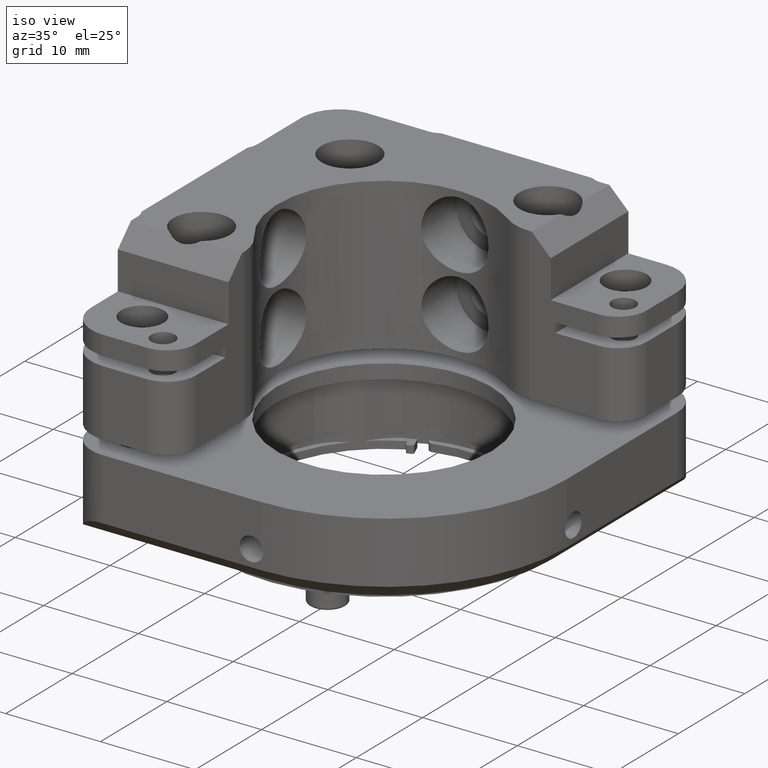
[diagram: clean part render]
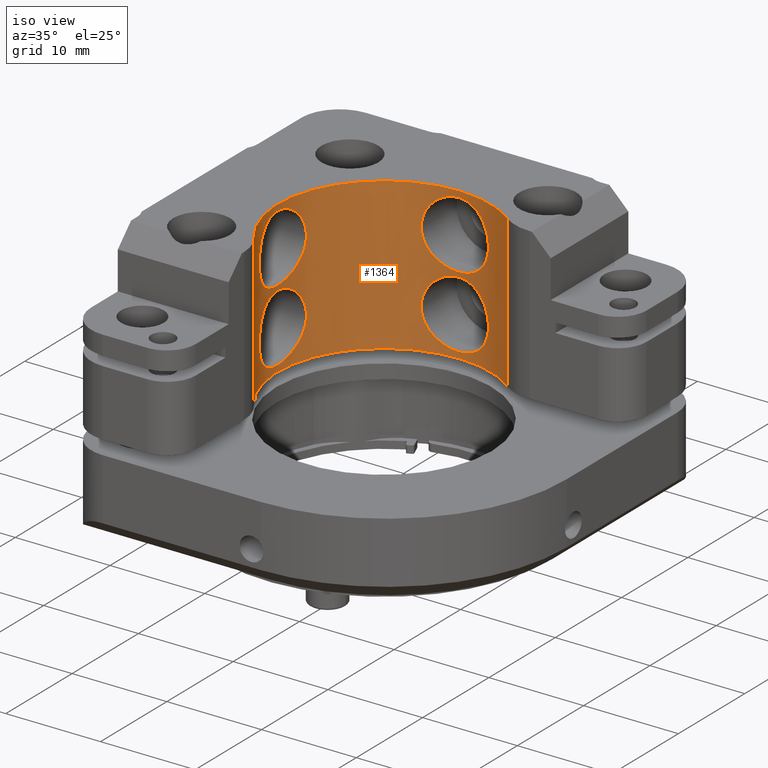
[diagram: same view with one face highlighted and labeled with its STEP entity id]
A machine part, iso view. The second image highlights one B-rep face of the part: STEP entity #1364.
In plain terms, the highlighted cylindrical surface (partial cylindrical patch) has radius 11.2451 mm, axis along (0, 0, 1).
Its self-contained STEP definition (entity closure, byte-faithful):
#15 = CARTESIAN_POINT ( 'NONE',  ( -14.31236666308320160, -4.865579616786823713, 43.62321763448039746 ) ) ;
#48 = AXIS2_PLACEMENT_3D ( 'NONE', #3763, #3634, #6253 ) ;
#69 = CYLINDRICAL_SURFACE ( 'NONE', #3404, 11.24513151818799983 ) ;
#161 = CARTESIAN_POINT ( 'NONE',  ( -1.530369033329904038, 8.586266490541754948, 51.62848633835312029 ) ) ;
#169 = CARTESIAN_POINT ( 'NONE',  ( -13.99150271913773835, -6.045252163959690783, 41.41662615687739191 ) ) ;
#212 = CARTESIAN_POINT ( 'NONE',  ( -14.44920764486471221, -0.9372601826190012364, 44.13704618239331268 ) ) ;
#230 = CARTESIAN_POINT ( 'NONE',  ( -14.34938155197306031, -0.3493427435872565323, 51.36994135241587145 ) ) ;
#245 = CARTESIAN_POINT ( 'NONE',  ( -5.987755658656773505, 8.405547851881792099, 50.89644701238560032 ) ) ;
#250 = CARTESIAN_POINT ( 'NONE',  ( -14.04353504106719619, -5.884579571790988339, 42.10084636964344185 ) ) ;
#266 = CARTESIAN_POINT ( 'NONE',  ( -14.50196695122227020, -3.668004962413770720, 51.91675362483372425 ) ) ;
#271 = CARTESIAN_POINT ( 'NONE',  ( -5.097218840745871837, 8.586185984047057573, 44.02812472142658606 ) ) ;
#285 = CARTESIAN_POINT ( 'NONE',  ( -14.02125086928506548, 0.9172719695080698843, 41.87422503393144524 ) ) ;
#302 = CARTESIAN_POINT ( 'NONE',  ( -14.55884723110194479, -2.752726602096708941, 52.10018332450349732 ) ) ;
#309 = CARTESIAN_POINT ( 'NONE',  ( -6.135110307681190811, 8.367934528686561180, 38.78320819674291897 ) ) ;
#321 = CARTESIAN_POINT ( 'NONE',  ( -4.893751913291115585, 8.617387937773468565, 45.36250325345411483 ) ) ;
#358 = CARTESIAN_POINT ( 'NONE',  ( 0.2363215169500273716, 8.151769701748913022, 40.94820530452321350 ) ) ;
#367 = CARTESIAN_POINT ( 'NONE',  ( -5.989346801238241369, 8.405152538514020222, 46.20552914934300759 ) ) ;
#388 = CARTESIAN_POINT ( 'NONE',  ( -14.02132692640836353, -5.953641031909469916, 47.62547198155860428 ) ) ;
#393 = CARTESIAN_POINT ( 'NONE',  ( -4.892652665842337711, 8.617549766822264701, 44.13819053998420827 ) ) ;
#401 = CARTESIAN_POINT ( 'NONE',  ( -3.546445800775468005, 8.726836882760416358, 45.00003243101766515 ) ) ;
#450 = ORIENTED_EDGE ( 'NONE', *, *, #7553, .F. ) ;
#581 = VERTEX_POINT ( 'NONE', #7536 ) ;
#592 = CARTESIAN_POINT ( 'NONE',  ( -14.55884723232798095, -2.752726543281989624, 44.50018332838695301 ) ) ;
#705 = CARTESIAN_POINT ( 'NONE',  ( -0.1252134088632065878, 8.265728095126508634, 50.12805316787222409 ) ) ;
#719 = EDGE_CURVE ( 'NONE', #5009, #5009, #6345, .T. ) ;
#746 = ORIENTED_EDGE ( 'NONE', *, *, #4487, .F. ) ;
#750 = CARTESIAN_POINT ( 'NONE',  ( -14.55130870250303410, -2.048446270117819878, 44.47649926543601850 ) ) ;
#781 = CARTESIAN_POINT ( 'NONE',  ( 0.2132244045658422960, 8.159533871875730426, 49.01654055617019878 ) ) ;
#785 = CARTESIAN_POINT ( 'NONE',  ( -14.23741422748051022, -5.192853967128993276, 38.60422123207457190 ) ) ;
#795 = VERTEX_POINT ( 'NONE', #6936 ) ;
#822 = CARTESIAN_POINT ( 'NONE',  ( -14.55881623220393095, -2.285960120800358819, 37.40004294645076754 ) ) ;
#884 = CARTESIAN_POINT ( 'NONE',  ( -14.41806050655969607, -0.7339734682347992534, 51.62776871347067242 ) ) ;
#887 = EDGE_LOOP ( 'NONE', ( #2243 ) ) ;
#889 = CARTESIAN_POINT ( 'NONE',  ( -1.530369033329870954, 8.586266490541742513, 44.02848633835299097 ) ) ;
#900 = CARTESIAN_POINT ( 'NONE',  ( -1.145475676170410129, 8.517576095495648758, 45.72945833709520969 ) ) ;
#905 = CARTESIAN_POINT ( 'NONE',  ( -13.98373852608685119, 1.031736571089606924, 40.71748260014703646 ) ) ;
#923 = CARTESIAN_POINT ( 'NONE',  ( -14.23784310037552991, -5.191031516735002072, 50.89782489308907998 ) ) ;
#929 = CARTESIAN_POINT ( 'NONE',  ( -0.6399691800440466816, 8.405619068986583287, 43.29670608751013106 ) ) ;
#941 = CARTESIAN_POINT ( 'NONE',  ( 0.1214089604871732425, 8.189424685421013095, 47.62450006543650716 ) ) ;
#964 = CARTESIAN_POINT ( 'NONE',  ( -14.23790010131066097, 0.1542511310234342958, 46.20198453954466089 ) ) ;
#970 = CARTESIAN_POINT ( 'NONE',  ( -4.461997229194887282, 8.670155739381200988, 37.58278913406236654 ) ) ;
#1010 = CARTESIAN_POINT ( 'NONE',  ( -13.98373852480606772, 1.031736574939190687, 48.31748265889726923 ) ) ;
#1016 = CARTESIAN_POINT ( 'NONE',  ( -0.1252134088631900455, 8.265728095126506858, 42.52805316787211609 ) ) ;
#1025 = CARTESIAN_POINT ( 'NONE',  ( -0.6422884623291388317, 8.406186816211155488, 46.20079897486505160 ) ) ;
#1047 = CARTESIAN_POINT ( 'NONE',  ( -14.52286853720845095, -3.445834450622162315, 45.11533075807382431 ) ) ;
#1052 = CARTESIAN_POINT ( 'NONE',  ( -5.479748306468347430, 8.517947867819531282, 43.77205179980550298 ) ) ;
#1059 = CARTESIAN_POINT ( 'NONE',  ( -4.461997229194839321, 8.670155739381204540, 45.18278913406242481 ) ) ;
#1211 = CARTESIAN_POINT ( 'NONE',  ( -14.52297633522691811, -1.592701298058768478, 51.98514347307779815 ) ) ;
#1245 = CARTESIAN_POINT ( 'NONE',  ( -14.41850419799524197, -4.299862009406195895, 44.02935634384621721 ) ) ;
#1257 = EDGE_LOOP ( 'NONE', ( #746 ) ) ;
#1299 = CARTESIAN_POINT ( 'NONE',  ( 0.2363215164391065937, 8.151769701380514377, 48.54820530439382509 ) ) ;
#1300 = VERTEX_POINT ( 'NONE', #2352 ) ;
#1357 = CARTESIAN_POINT ( 'NONE',  ( -13.99165030725404613, -6.044802769002547649, 40.48079061483018393 ) ) ;
#1364 = ADVANCED_FACE ( 'NONE', ( #6858, #3136, #3790, #3824, #6316 ), #69, .F. ) ;
#1396 = CARTESIAN_POINT ( 'NONE',  ( -14.55148877729722123, -2.985073329748103799, 37.42304954772966852 ) ) ;
#1432 = CARTESIAN_POINT ( 'NONE',  ( -13.99164787808042476, 1.008203451408851592, 40.48055458937659523 ) ) ;
#1485 = CARTESIAN_POINT ( 'NONE',  ( -14.52291027287348690, -1.591501658945259967, 45.11519661780572932 ) ) ;
#1493 = CARTESIAN_POINT ( 'NONE',  ( -5.660020284225925735, 8.480600871087764503, 43.62417739994854315 ) ) ;
#1508 = CARTESIAN_POINT ( 'NONE',  ( 0.2363215169500273438, 8.151769701748911245, 48.54820530452334992 ) ) ;
#1519 = CARTESIAN_POINT ( 'NONE',  ( -14.09777251288874567, -5.706580962251557310, 39.37140812076432894 ) ) ;
#1538 = CARTESIAN_POINT ( 'NONE',  ( -14.09792468312627989, 0.6694563421489656552, 46.97040808818641722 ) ) ;
#1545 = CARTESIAN_POINT ( 'NONE',  ( -5.098912216429692279, 8.585917054038194607, 37.87296225804834648 ) ) ;
#1554 = CARTESIAN_POINT ( 'NONE',  ( -2.846991596595978002, 8.719482409169849291, 52.07699876430663721 ) ) ;
#1579 = CARTESIAN_POINT ( 'NONE',  ( -14.04353503508571421, -5.884579590757777368, 49.70084631418019683 ) ) ;
#1585 = CARTESIAN_POINT ( 'NONE',  ( -0.2357511986268673587, 8.298218711627319166, 39.16612497313411012 ) ) ;
#1593 = CARTESIAN_POINT ( 'NONE',  ( -3.783357612573775786, 8.719341818254731535, 45.02357736213344452 ) ) ;
#1621 = CARTESIAN_POINT ( 'NONE',  ( -14.19966687702944341, -5.340682160188625183, 46.38450991387337297 ) ) ;
#1626 = CARTESIAN_POINT ( 'NONE',  ( -6.840702377601674655, 8.159496477382646162, 41.41675422064765399 ) ) ;
#1635 = CARTESIAN_POINT ( 'NONE',  ( -3.546426494587659128, 8.726852179569906554, 52.10014409357718534 ) ) ;
#1655 = CARTESIAN_POINT ( 'NONE',  ( -12.31247930067644880, -9.261787319892579973, 36.75006403882015604 ) ) ;
#1661 = CARTESIAN_POINT ( 'NONE',  ( -14.13000341172667973, -5.596967618585718895, 50.33293905043067440 ) ) ;
#1668 = CARTESIAN_POINT ( 'NONE',  ( -1.734984760622182653, 8.617543287776882721, 44.13814684444164271 ) ) ;
#1679 = CARTESIAN_POINT ( 'NONE',  ( -6.391873348702816315, 8.298136407065943132, 46.76668020533094960 ) ) ;
#1703 = ORIENTED_EDGE ( 'NONE', *, *, #2377, .F. ) ;
#1748 = EDGE_LOOP ( 'NONE', ( #3277 ) ) ;
#1783 = CARTESIAN_POINT ( 'NONE',  ( -14.44920765232755500, -0.9372602349848169201, 51.73704620837801826 ) ) ;
#1867 = ORIENTED_EDGE ( 'NONE', *, *, #2639, .F. ) ;
#1873 = DIRECTION ( 'NONE',  ( 1.000000000000000000, 0.000000000000000000, 0.000000000000000000 ) ) ;
#1883 = DIRECTION ( 'NONE',  ( -0.000000000000000000, -0.000000000000000000, -1.000000000000000000 ) ) ;
#1928 = CARTESIAN_POINT ( 'NONE',  ( 0.2364452044605728498, 8.151728550150849628, 41.18443677306663631 ) ) ;
#1979 = CARTESIAN_POINT ( 'NONE',  ( -14.09743686839448529, 0.6710712880680719250, 42.52604706975761673 ) ) ;
#2013 = CARTESIAN_POINT ( 'NONE',  ( -13.98372829061531952, -6.068376562862218826, 40.71717101020955454 ) ) ;
#2049 = CARTESIAN_POINT ( 'NONE',  ( -14.02143916999785489, 0.9166845536863736932, 40.02402532973906091 ) ) ;
#2097 = CARTESIAN_POINT ( 'NONE',  ( -13.99150271656788114, -6.045252171686082754, 49.01662609851116770 ) ) ;
#2104 = CARTESIAN_POINT ( 'NONE',  ( -1.737394979588947397, 8.617875880559399349, 37.76082831156052322 ) ) ;
#2116 = CARTESIAN_POINT ( 'NONE',  ( -0.9676576224955441008, 8.480650949830732088, 45.87582455977587159 ) ) ;
#2139 = CARTESIAN_POINT ( 'NONE',  ( -14.55881623098980704, -2.285960062059621656, 45.00004295029686574 ) ) ;
#2141 = EDGE_LOOP ( 'NONE', ( #1703, #1867, #450, #6157 ) ) ;
#2144 = CARTESIAN_POINT ( 'NONE',  ( -5.662346490322124559, 8.480098723900450608, 38.27802292585673172 ) ) ;
#2183 = CARTESIAN_POINT ( 'NONE',  ( -14.31245966457891861, -4.865223725128505983, 45.87645910048630782 ) ) ;
#2188 = CARTESIAN_POINT ( 'NONE',  ( -3.546445800775518187, 8.726836882760416358, 37.40003243101754293 ) ) ;
#2197 = CARTESIAN_POINT ( 'NONE',  ( -3.079947191275853147, 8.726816905514855449, 45.00009570405405412 ) ) ;
#2221 = CARTESIAN_POINT ( 'NONE',  ( -14.55145378063382289, -2.984852828135218239, 52.07696004103888754 ) ) ;
#2227 = CARTESIAN_POINT ( 'NONE',  ( -6.680442926197286191, 8.211398892409080830, 42.09946308467313969 ) ) ;
#2236 = CARTESIAN_POINT ( 'NONE',  ( -5.662346490322087256, 8.480098723900463042, 45.87802292585680419 ) ) ;
#2243 = ORIENTED_EDGE ( 'NONE', *, *, #5781, .F. ) ;
#2263 = CARTESIAN_POINT ( 'NONE',  ( -14.34995764190793999, -4.684324765757032161, 51.37218108142621276 ) ) ;
#2269 = CARTESIAN_POINT ( 'NONE',  ( -2.848556576432041521, 8.719556694874016856, 37.42289242967193275 ) ) ;
#2281 = CARTESIAN_POINT ( 'NONE',  ( -6.680442926197303954, 8.211398892409077277, 49.69946308467318374 ) ) ;
#2335 = DIRECTION ( 'NONE',  ( 1.000000000000000000, 0.000000000000000000, 0.000000000000000000 ) ) ;
#2352 = CARTESIAN_POINT ( 'NONE',  ( 3.429804650809838318, 6.480496631595250356, 36.75006403882015604 ) ) ;
#2377 = EDGE_CURVE ( 'NONE', #4892, #4403, #6847, .T. ) ;
#2430 = CARTESIAN_POINT ( 'NONE',  ( -14.55880942955014490, -2.516505101774574538, 52.10006357876157068 ) ) ;
#2464 = CARTESIAN_POINT ( 'NONE',  ( -14.50196695693910343, -3.668004907041888973, 44.31675364374573434 ) ) ;
#2486 = LINE ( 'NONE', #5642, #3750 ) ;
#2499 = CARTESIAN_POINT ( 'NONE',  ( -14.23784310980699530, -5.191031478346448402, 43.29782493678879263 ) ) ;
#2535 = CARTESIAN_POINT ( 'NONE',  ( 0.2363215169500273438, 8.151769701748911245, 48.54820530452334992 ) ) ;
#2565 = CARTESIAN_POINT ( 'NONE',  ( -3.313678055346378937, -2.518304613739263065, 36.75006403882015604 ) ) ;
#2621 = CARTESIAN_POINT ( 'NONE',  ( -14.50197724387635390, -3.667851362102223511, 37.58334389165352718 ) ) ;
#2639 = EDGE_CURVE ( 'NONE', #1300, #4892, #5837, .T. ) ;
#2648 = CARTESIAN_POINT ( 'NONE',  ( -1.734984760622216626, 8.617543287776893379, 51.73814684444178624 ) ) ;
#2655 = CARTESIAN_POINT ( 'NONE',  ( -14.31283028961672699, -0.1731326271628945701, 38.27495657587262912 ) ) ;
#2693 = CARTESIAN_POINT ( 'NONE',  ( -14.13008342141962004, -5.596606515188890185, 39.16694959676458154 ) ) ;
#2712 = CARTESIAN_POINT ( 'NONE',  ( -14.31283028025158544, -0.1731325834270254493, 45.87495661421760929 ) ) ;
#2718 = CARTESIAN_POINT ( 'NONE',  ( -6.863700753026835244, 8.151762007790090081, 40.71776410162691917 ) ) ;
#2729 = CARTESIAN_POINT ( 'NONE',  ( -2.164116382807927952, 8.669979092779261265, 45.18340385829866790 ) ) ;
#2734 = CARTESIAN_POINT ( 'NONE',  ( -14.04340210497725394, 0.8483843531531217730, 42.09951892680395247 ) ) ;
#2750 = CARTESIAN_POINT ( 'NONE',  ( -14.31236665372329497, -4.865579660462101330, 51.22321759613161163 ) ) ;
#2755 = CARTESIAN_POINT ( 'NONE',  ( -0.1265502701843356226, 8.266125847945883010, 39.36932955230238207 ) ) ;
#2791 = CARTESIAN_POINT ( 'NONE',  ( -13.98377623798470992, -6.068232449621256741, 48.78514352119040609 ) ) ;
#2798 = CARTESIAN_POINT ( 'NONE',  ( -4.460291095130718197, 8.670336597000263268, 44.31794022338033301 ) ) ;
#2809 = EDGE_CURVE ( 'NONE', #795, #795, #4419, .T. ) ;
#2811 = CARTESIAN_POINT ( 'NONE',  ( 0.2127474845624594268, 8.159692036471966503, 48.08015511804587305 ) ) ;
#2835 = CARTESIAN_POINT ( 'NONE',  ( -14.55142638204622152, -2.050476473053577386, 45.02325034902395373 ) ) ;
#2848 = CARTESIAN_POINT ( 'NONE',  ( -6.133777362313810322, 8.368282313894892965, 50.71867025855012656 ) ) ;
#2864 = CARTESIAN_POINT ( 'NONE',  ( -3.313678055346378937, -2.518304613739263065, 36.75006403882015604 ) ) ;
#2870 = CARTESIAN_POINT ( 'NONE',  ( -14.20004375408154473, 0.3027011831886659565, 50.71773260952213747 ) ) ;
#2877 = CARTESIAN_POINT ( 'NONE',  ( -0.9652780690512403616, 8.480142789428967376, 43.62222898845078589 ) ) ;
#2884 = CARTESIAN_POINT ( 'NONE',  ( -6.135110307681167718, 8.367934528686570061, 46.38320819674297724 ) ) ;
#2999 = B_SPLINE_CURVE_WITH_KNOTS ( 'NONE', 3,
 ( #7710, #302, #2221, #7864, #266, #7087, #6643, #2263, #2750, #923, #5248, #1661, #4644, #1579, #4064, #2097, #2791, #5294, #7826, #388, #7137, #3411, #5218, #1621, #5904, #2183, #4686, #7177, #6521, #4723, #1047, #6562, #7216, #2139, #2835, #1485, #7260, #4102, #6604, #5829, #2712, #964, #6483, #3373, #1538, #3450, #5950, #7743, #1010, #3985, #3495, #7790, #5334, #4023, #5986, #2870, #5371, #4146, #230, #884, #1783, #5417, #1211, #6063, #4314, #2430 ),
 .UNSPECIFIED., .T., .F.,
 ( 4, 2, 2, 2, 2, 2, 2, 2, 2, 2, 2, 2, 2, 2, 2, 2, 2, 2, 2, 2, 2, 2, 2, 2, 2, 2, 2, 2, 2, 2, 2, 2, 4 ),
 ( 0.000000000000000000, 0.0006989021168187838648, 0.001397804233637567730, 0.002096706350456351703, 0.002795608467275135459, 0.003494510584093919216, 0.004193412700912703406, 0.004892314817731486729, 0.005591216934550270919, 0.006290119051369055109, 0.006989021168187838431, 0.007687923285006622622, 0.008386825401825406812, 0.009085727518644190134, 0.009784629635462973457, 0.01048353175228175851, 0.01118243386910054184, 0.01188133598591932516, 0.01258023810273811022, 0.01327914021955689354, 0.01397804233637567686, 0.01467694445319446192, 0.01537584657001324524, 0.01607474868683202857, 0.01677365080365081362, 0.01747255292046959521, 0.01817145503728838027, 0.01887035715410716533, 0.01956925927092594691, 0.02026816138774473197, 0.02096706350456351703, 0.02166596562138229862, 0.02236486773820108367 ),
 .UNSPECIFIED. ) ;
#3136 = FACE_BOUND ( 'NONE', #3987, .T. ) ;
#3185 = CARTESIAN_POINT ( 'NONE',  ( -0.2340937240304970524, 8.297742666492791130, 50.33110633409995671 ) ) ;
#3234 = CARTESIAN_POINT ( 'NONE',  ( -14.55880942954073198, -2.516505042961861172, 44.50006357873154172 ) ) ;
#3263 = CARTESIAN_POINT ( 'NONE',  ( -0.6399691800440767686, 8.405619068986592168, 50.89670608751026037 ) ) ;
#3267 = CARTESIAN_POINT ( 'NONE',  ( -14.55142638448435832, -2.050476531274424197, 37.42325034129973460 ) ) ;
#3277 = ORIENTED_EDGE ( 'NONE', *, *, #719, .F. ) ;
#3309 = CARTESIAN_POINT ( 'NONE',  ( -14.55880290564182111, -2.751293199910755938, 37.40008515251747667 ) ) ;
#3373 = CARTESIAN_POINT ( 'NONE',  ( -14.13034108904982844, 0.5591043744184972519, 46.76536937481006362 ) ) ;
#3379 = CARTESIAN_POINT ( 'NONE',  ( -6.748435234861074328, 8.189532694938757018, 41.87750321235480300 ) ) ;
#3392 = CARTESIAN_POINT ( 'NONE',  ( -14.41787488635145031, -4.303739312418860763, 37.87303875578461287 ) ) ;
#3404 = AXIS2_PLACEMENT_3D ( 'NONE', #2565, #7559, #1873 ) ;
#3406 = VERTEX_POINT ( 'NONE', #4720 ) ;
#3411 = CARTESIAN_POINT ( 'NONE',  ( -14.09777252055769914, -5.706580936417137373, 46.97140806861663265 ) ) ;
#3417 = CARTESIAN_POINT ( 'NONE',  ( -2.389513530173300815, 8.691146073613195355, 37.51448584377156692 ) ) ;
#3450 = CARTESIAN_POINT ( 'NONE',  ( -14.04320260101548712, 0.8490531433978674158, 47.40200718258390822 ) ) ;
#3458 = CARTESIAN_POINT ( 'NONE',  ( 0.2361978294394818934, 8.151810853346978192, 40.71197383597979069 ) ) ;
#3470 = CARTESIAN_POINT ( 'NONE',  ( -5.660020284225955045, 8.480600871087755621, 51.22417739994862274 ) ) ;
#3495 = CARTESIAN_POINT ( 'NONE',  ( -13.99143269117510968, 1.008855428358812478, 49.01525435947483800 ) ) ;
#3500 = CARTESIAN_POINT ( 'NONE',  ( -3.546426494587616940, 8.726852179569906554, 44.50014409357709866 ) ) ;
#3508 = CARTESIAN_POINT ( 'NONE',  ( -6.863700753026828139, 8.151762007790090081, 48.31776410162696322 ) ) ;
#3534 = CARTESIAN_POINT ( 'NONE',  ( -6.390927630420544681, 8.298407922276425097, 42.73509850987230863 ) ) ;
#3543 = CARTESIAN_POINT ( 'NONE',  ( -4.892652665842375015, 8.617549766822257595, 51.73819053998428075 ) ) ;
#3634 = DIRECTION ( 'NONE',  ( -0.000000000000000000, -0.000000000000000000, -1.000000000000000000 ) ) ;
#3750 = VECTOR ( 'NONE', #1883, 1000.000000000000000 ) ;
#3763 = CARTESIAN_POINT ( 'NONE',  ( -3.313678055346378937, -2.518304613739263065, 52.75006403882015604 ) ) ;
#3790 = FACE_OUTER_BOUND ( 'NONE', #2141, .T. ) ;
#3824 = FACE_BOUND ( 'NONE', #1748, .T. ) ;
#3842 = CARTESIAN_POINT ( 'NONE',  ( 0.1221624845443527868, 8.189182274931617656, 49.47290805223508414 ) ) ;
#3847 = CARTESIAN_POINT ( 'NONE',  ( -14.50174835130915874, -1.366434922841037292, 44.31603387542985217 ) ) ;
#3886 = CARTESIAN_POINT ( 'NONE',  ( -14.13034109741490418, 0.5591043451502037964, 39.16536932435119667 ) ) ;
#3921 = CARTESIAN_POINT ( 'NONE',  ( -14.12954057748730641, 0.5619794209226687265, 42.73015138977405769 ) ) ;
#3940 = CARTESIAN_POINT ( 'NONE',  ( 0.2363215169500273716, 8.151769701748913022, 40.94820530452321350 ) ) ;
#3959 = CARTESIAN_POINT ( 'NONE',  ( -14.44967136933197160, -4.096008441965778957, 37.76147297763942134 ) ) ;
#3985 = CARTESIAN_POINT ( 'NONE',  ( -13.98376600850350648, 1.031653968431955670, 48.78390287392970492 ) ) ;
#3987 = EDGE_LOOP ( 'NONE', ( #4684 ) ) ;
#3991 = CARTESIAN_POINT ( 'NONE',  ( -0.9676576224955734107, 8.480650949830737417, 38.27582455977576359 ) ) ;
#4002 = CARTESIAN_POINT ( 'NONE',  ( -3.782833663569133087, 8.719352549976479239, 52.07658276709626222 ) ) ;
#4006 = CARTESIAN_POINT ( 'NONE',  ( -14.04320260698795053, 0.8490531244680061818, 39.80200712708580113 ) ) ;
#4023 = CARTESIAN_POINT ( 'NONE',  ( -14.09743687607721263, 0.6710712621954466606, 50.12604712210562496 ) ) ;
#4030 = CARTESIAN_POINT ( 'NONE',  ( -3.782833663569089566, 8.719352549976475686, 44.47658276709618264 ) ) ;
#4039 = CARTESIAN_POINT ( 'NONE',  ( -5.097218840745913582, 8.586185984047057573, 51.62812472142667275 ) ) ;
#4064 = CARTESIAN_POINT ( 'NONE',  ( -14.02129716282795968, -5.953736409218917558, 49.47464372509379871 ) ) ;
#4069 = CARTESIAN_POINT ( 'NONE',  ( 0.2127474845624525990, 8.159692036471968279, 40.48015511804570821 ) ) ;
#4077 = CARTESIAN_POINT ( 'NONE',  ( -0.1265502701843156663, 8.266125847945877680, 46.96932955230251849 ) ) ;
#4102 = CARTESIAN_POINT ( 'NONE',  ( -14.44990052618223508, -0.9422479295007150091, 45.36067783892659833 ) ) ;
#4110 = CARTESIAN_POINT ( 'NONE',  ( -6.391873348702837632, 8.298136407065939579, 39.16668020533089134 ) ) ;
#4120 = CARTESIAN_POINT ( 'NONE',  ( -4.239917897994151197, 8.690949419017627520, 45.11512781427170893 ) ) ;
#4146 = CARTESIAN_POINT ( 'NONE',  ( -14.31182664526665782, -0.1685190205109306505, 51.22099704538728560 ) ) ;
#4151 = CARTESIAN_POINT ( 'NONE',  ( -0.2340937240304764300, 8.297742666492785801, 42.73110633409979897 ) ) ;
#4163 = CARTESIAN_POINT ( 'NONE',  ( -6.502404899382900005, 8.265649398568497119, 50.12748122965015085 ) ) ;
#4314 = CARTESIAN_POINT ( 'NONE',  ( -14.55877162799834501, -2.280283601452439690, 52.09994383301963694 ) ) ;
#4395 = CARTESIAN_POINT ( 'NONE',  ( -14.55145378307320314, -2.984852769765178326, 44.47696004876737419 ) ) ;
#4403 = VERTEX_POINT ( 'NONE', #6977 ) ;
#4419 = B_SPLINE_CURVE_WITH_KNOTS ( 'NONE', 3,
 ( #6233, #592, #4395, #5578, #2464, #4964, #1245, #7456, #15, #2499, #6889, #4439, #6302, #250, #7035, #169, #4513, #2013, #1357, #7584, #6384, #1519, #2693, #5160, #785, #7115, #5888, #3392, #3959, #2621, #6348, #1396, #3309, #822, #3267, #6503, #6961, #6417, #4552, #5771, #2655, #7003, #7657, #3886, #7728, #4006, #2049, #1432, #905, #5849, #5125, #285, #2734, #1979, #3921, #5088, #5810, #5737, #7071, #4477, #212, #3847, #5201, #750, #7693, #3234 ),
 .UNSPECIFIED., .T., .F.,
 ( 4, 2, 2, 2, 2, 2, 2, 2, 2, 2, 2, 2, 2, 2, 2, 2, 2, 2, 2, 2, 2, 2, 2, 2, 2, 2, 2, 2, 2, 2, 2, 2, 4 ),
 ( 0.000000000000000000, 0.0006989021169183640397, 0.001397804233836728079, 0.002096706350755093637, 0.002795608467673458761, 0.003494510584591823885, 0.004193412701510189008, 0.004892314818428555000, 0.005591216935346920124, 0.006290119052265284380, 0.006989021169183650371, 0.007687923286102015495, 0.008386825403020381486, 0.009085727519938746610, 0.009784629636857111734, 0.01048353175377547686, 0.01118243387069384198, 0.01188133598761220711, 0.01258023810453056876, 0.01327914022144893388, 0.01397804233836729901, 0.01467694445528566413, 0.01537584657220402579, 0.01607474868912239091, 0.01677365080604075603, 0.01747255292295912116, 0.01817145503987748281, 0.01887035715679584794, 0.01956925927371420959, 0.02026816139063257471, 0.02096706350755093984, 0.02166596562446930149, 0.02236486774138767009 ),
 .UNSPECIFIED. ) ;
#4420 = CARTESIAN_POINT ( 'NONE',  ( 0.1221624845443637919, 8.189182274931621208, 41.87290805223497614 ) ) ;
#4439 = CARTESIAN_POINT ( 'NONE',  ( -14.13000342007877386, -5.596967589379832297, 42.73293910085815384 ) ) ;
#4477 = CARTESIAN_POINT ( 'NONE',  ( -14.41806049841034110, -0.7339734177461229025, 44.02776868419192624 ) ) ;
#4487 = EDGE_CURVE ( 'NONE', #3406, #3406, #2999, .T. ) ;
#4513 = CARTESIAN_POINT ( 'NONE',  ( -13.98377623927853541, -6.068232445732481217, 41.18514357995886144 ) ) ;
#4547 = VECTOR ( 'NONE', #6932, 1000.000000000000000 ) ;
#4552 = CARTESIAN_POINT ( 'NONE',  ( -14.41811656271862674, -0.7343811640644470895, 37.87217431550940461 ) ) ;
#4606 = CARTESIAN_POINT ( 'NONE',  ( -4.239917897994200935, 8.690949419017620414, 37.51512781427160803 ) ) ;
#4616 = CARTESIAN_POINT ( 'NONE',  ( -0.2357511986268418791, 8.298218711627310284, 46.76612497313428207 ) ) ;
#4617 = VERTEX_POINT ( 'NONE', #7551 ) ;
#4644 = CARTESIAN_POINT ( 'NONE',  ( -14.09776218133027825, -5.706590609421564153, 50.12833507118006793 ) ) ;
#4651 = CARTESIAN_POINT ( 'NONE',  ( -0.6422884623291661432, 8.406186816211162594, 38.60079897486488676 ) ) ;
#4684 = ORIENTED_EDGE ( 'NONE', *, *, #2809, .F. ) ;
#4686 = CARTESIAN_POINT ( 'NONE',  ( -14.34933855203380304, -4.687443089632545856, 45.73036547846156452 ) ) ;
#4694 = CARTESIAN_POINT ( 'NONE',  ( -2.388869613929413216, 8.691083539488795751, 44.38543799371849019 ) ) ;
#4701 = CARTESIAN_POINT ( 'NONE',  ( -2.388869613929451408, 8.691083539488793974, 51.98543799371858398 ) ) ;
#4720 = CARTESIAN_POINT ( 'NONE',  ( -14.55880942950740753, -2.516505101756307372, 52.10006357871882443 ) ) ;
#4723 = CARTESIAN_POINT ( 'NONE',  ( -14.50197724960687573, -3.667851306598838956, 45.18334387269553787 ) ) ;
#4729 = CARTESIAN_POINT ( 'NONE',  ( -3.079947191275899776, 8.726816905514853673, 37.40009570405393902 ) ) ;
#4737 = CARTESIAN_POINT ( 'NONE',  ( -5.481788173874002190, 8.517550512664637807, 45.72961817939619777 ) ) ;
#4775 = CARTESIAN_POINT ( 'NONE',  ( -1.143012761023153079, 8.517088567206256400, 43.76876713598431223 ) ) ;
#4784 = CARTESIAN_POINT ( 'NONE',  ( -6.840486659330494490, 8.159566873264370912, 48.08223479429365455 ) ) ;
#4892 = VERTEX_POINT ( 'NONE', #1655 ) ;
#4964 = CARTESIAN_POINT ( 'NONE',  ( -14.44957534350381856, -4.096724994224407723, 44.13832356632271825 ) ) ;
#5009 = VERTEX_POINT ( 'NONE', #1299 ) ;
#5059 = CARTESIAN_POINT ( 'NONE',  ( -12.31247930067502239, -9.261787319891753967, 36.75006403882015604 ) ) ;
#5088 = CARTESIAN_POINT ( 'NONE',  ( -14.20004374486268262, 0.3027012186134506178, 43.11773256341994909 ) ) ;
#5125 = CARTESIAN_POINT ( 'NONE',  ( -13.99143268861343259, 1.008855436060053457, 41.41525430115269302 ) ) ;
#5143 = CIRCLE ( 'NONE', #48, 11.24513151818799983 ) ;
#5154 = CARTESIAN_POINT ( 'NONE',  ( -2.162604241318661469, 8.669832410768812281, 51.91624488915952895 ) ) ;
#5160 = CARTESIAN_POINT ( 'NONE',  ( -14.19966686780883158, -5.340682195606855309, 38.78450996002833051 ) ) ;
#5201 = CARTESIAN_POINT ( 'NONE',  ( -14.52297633052770287, -1.592701241337277862, 44.38514345778851578 ) ) ;
#5218 = CARTESIAN_POINT ( 'NONE',  ( -14.13008342977265919, -5.596606485972150047, 46.76694954633290280 ) ) ;
#5223 = CARTESIAN_POINT ( 'NONE',  ( -6.680875759623870813, 8.211261131199359298, 39.80199340117800233 ) ) ;
#5229 = CARTESIAN_POINT ( 'NONE',  ( -1.533219182167269823, 8.586727164083134411, 45.46998542960358947 ) ) ;
#5248 = CARTESIAN_POINT ( 'NONE',  ( -14.20052046670563328, -5.337475134072348304, 50.72010706791046175 ) ) ;
#5254 = CARTESIAN_POINT ( 'NONE',  ( -6.133777362313783676, 8.368282313894898294, 43.11867025855003988 ) ) ;
#5294 = CARTESIAN_POINT ( 'NONE',  ( -13.98372829189709776, -6.068376559009611704, 48.31717095152794172 ) ) ;
#5300 = CARTESIAN_POINT ( 'NONE',  ( -5.987755658656748636, 8.405547851881793875, 43.29644701238552074 ) ) ;
#5334 = CARTESIAN_POINT ( 'NONE',  ( -14.04340211094560331, 0.8483843342302226365, 49.69951898221236775 ) ) ;
#5349 = CARTESIAN_POINT ( 'NONE',  ( -2.848556576431994891, 8.719556694874015079, 45.02289242967203364 ) ) ;
#5371 = CARTESIAN_POINT ( 'NONE',  ( -14.23735183233070245, 0.1564133067401859145, 50.89554042323900518 ) ) ;
#5376 = CARTESIAN_POINT ( 'NONE',  ( -2.846991596595936258, 8.719482409169852843, 44.47699876430654342 ) ) ;
#5417 = CARTESIAN_POINT ( 'NONE',  ( -14.50174835704737042, -1.366434978306969139, 51.91603389441686289 ) ) ;
#5578 = CARTESIAN_POINT ( 'NONE',  ( -14.52319783786848362, -3.441308803232842717, 44.38586466859145219 ) ) ;
#5603 = EDGE_CURVE ( 'NONE', #4403, #4617, #5143, .T. ) ;
#5642 = CARTESIAN_POINT ( 'NONE',  ( 3.429804650811773215, 6.480496631598422042, 36.75006403882015604 ) ) ;
#5731 = CARTESIAN_POINT ( 'NONE',  ( -0.4911081750577904192, 8.367641265824399710, 50.71548560259152083 ) ) ;
#5737 = CARTESIAN_POINT ( 'NONE',  ( -14.31182663589820869, -0.1685189768458766335, 43.62099700697147853 ) ) ;
#5766 = CARTESIAN_POINT ( 'NONE',  ( -0.9652780690512744455, 8.480142789428978034, 51.22222898845091521 ) ) ;
#5771 = CARTESIAN_POINT ( 'NONE',  ( -14.34965903028177081, -0.3508034351524139116, 38.12911976131697145 ) ) ;
#5781 = EDGE_CURVE ( 'NONE', #581, #581, #7573, .T. ) ;
#5810 = CARTESIAN_POINT ( 'NONE',  ( -14.23735182290510259, 0.1564133450732254904, 43.29554037952398460 ) ) ;
#5829 = CARTESIAN_POINT ( 'NONE',  ( -14.34965902118301706, -0.3508033890057177806, 45.72911979677649441 ) ) ;
#5837 = CIRCLE ( 'NONE', #6493, 11.24513151818799983 ) ;
#5849 = CARTESIAN_POINT ( 'NONE',  ( -13.98376600721580232, 1.031653972302352784, 41.18390281516350626 ) ) ;
#5874 = CARTESIAN_POINT ( 'NONE',  ( -6.748578568805209343, 8.189485862579456210, 40.02340249960982987 ) ) ;
#5883 = CARTESIAN_POINT ( 'NONE',  ( -6.863655205850921703, 8.151777161618262824, 48.78305897889934073 ) ) ;
#5888 = CARTESIAN_POINT ( 'NONE',  ( -14.34933854292803090, -4.687443135775486880, 38.13036551396326956 ) ) ;
#5904 = CARTESIAN_POINT ( 'NONE',  ( -14.23741423689451580, -5.192853928844922251, 46.20422118842130033 ) ) ;
#5910 = CARTESIAN_POINT ( 'NONE',  ( -1.145475676170445656, 8.517576095495654087, 38.12945833709507326 ) ) ;
#5950 = CARTESIAN_POINT ( 'NONE',  ( -14.02143916507536048, 0.9166845689758924554, 47.62402538644072081 ) ) ;
#5954 = CARTESIAN_POINT ( 'NONE',  ( -4.238301339459290773, 8.691071697921206152, 44.38539707291590730 ) ) ;
#5965 = CARTESIAN_POINT ( 'NONE',  ( -6.390927630420567773, 8.298407922276417992, 50.33509850987236689 ) ) ;
#5986 = CARTESIAN_POINT ( 'NONE',  ( -14.12954058581125949, 0.5619793918330148186, 50.33015144011146447 ) ) ;
#5993 = CARTESIAN_POINT ( 'NONE',  ( 0.1214089604871606692, 8.189424685421011318, 40.02450006543634942 ) ) ;
#5999 = CARTESIAN_POINT ( 'NONE',  ( -6.748435234861091203, 8.189532694938753465, 49.47750321235486837 ) ) ;
#6028 = CARTESIAN_POINT ( 'NONE',  ( -2.162604241318625498, 8.669832410768808728, 44.31624488915942095 ) ) ;
#6063 = CARTESIAN_POINT ( 'NONE',  ( -14.55130870495940698, -2.048446328498501501, 52.07649927321978112 ) ) ;
#6157 = ORIENTED_EDGE ( 'NONE', *, *, #5603, .F. ) ;
#6233 = CARTESIAN_POINT ( 'NONE',  ( -14.55880942954073198, -2.516505042961861172, 44.50006357873154172 ) ) ;
#6253 = DIRECTION ( 'NONE',  ( 1.000000000000000000, 0.000000000000000000, 0.000000000000000000 ) ) ;
#6297 = CARTESIAN_POINT ( 'NONE',  ( 0.05308456614546614577, 8.211400774494157062, 49.69952737802825027 ) ) ;
#6302 = CARTESIAN_POINT ( 'NONE',  ( -14.09776218902718092, -5.706590583491978563, 42.52833512354719403 ) ) ;
#6316 = FACE_BOUND ( 'NONE', #887, .T. ) ;
#6345 = B_SPLINE_CURVE_WITH_KNOTS ( 'NONE', 3,
 ( #2535, #6956, #781, #3842, #6297, #705, #3185, #5731, #3263, #5766, #7067, #161, #2648, #5154, #4701, #1554, #7723, #1635, #4002, #7804, #7153, #3543, #4039, #7274, #3470, #245, #2848, #5965, #4163, #2281, #5999, #7878, #5883, #3508, #4784, #6499, #6657, #7231, #1679, #2884, #367, #2236, #4737, #7841, #321, #1059, #4120, #1593, #401, #2197, #5349, #6576, #2729, #6621, #5229, #900, #2116, #1025, #7191, #4616, #4077, #6537, #941, #2811, #7107, #1508 ),
 .UNSPECIFIED., .T., .F.,
 ( 4, 2, 2, 2, 2, 2, 2, 2, 2, 2, 2, 2, 2, 2, 2, 2, 2, 2, 2, 2, 2, 2, 2, 2, 2, 2, 2, 2, 2, 2, 2, 2, 4 ),
 ( 0.000000000000000000, 0.0006988796658876454942, 0.001397759331775290988, 0.002096638997662936266, 0.002795518663550581977, 0.003494398329438227688, 0.004193277995325872531, 0.004892157661213519110, 0.005591037327101164821, 0.006289916992988812267, 0.006988796658876457110, 0.007687676324764102821, 0.008386555990651748532, 0.009085435656539393376, 0.009784315322427039954, 0.01048319498831468480, 0.01118207465420232964, 0.01188095432008997622, 0.01257983398597762106, 0.01327871365186526764, 0.01397759331775291249, 0.01467647298364055733, 0.01537535264952820391, 0.01607423231541585049, 0.01677311198130349360, 0.01747199164719114017, 0.01817087131307878675, 0.01886975097896642986, 0.01956863064485407644, 0.02026751031074172302, 0.02096638997662936613, 0.02166526964251701270, 0.02236414930840465581 ),
 .UNSPECIFIED. ) ;
#6348 = CARTESIAN_POINT ( 'NONE',  ( -14.52286853250172705, -3.445834507321037687, 37.51533077338767441 ) ) ;
#6384 = CARTESIAN_POINT ( 'NONE',  ( -14.04302875973207243, -5.886216846262124491, 39.80357906557582481 ) ) ;
#6417 = CARTESIAN_POINT ( 'NONE',  ( -14.44990053361544824, -0.9422479818229776427, 37.76067781306181814 ) ) ;
#6483 = CARTESIAN_POINT ( 'NONE',  ( -14.20005008547469139, 0.3026082326140059342, 46.38256966266853709 ) ) ;
#6489 = CARTESIAN_POINT ( 'NONE',  ( -0.4934454584545690525, 8.368251254989079513, 38.78157138319555486 ) ) ;
#6493 = AXIS2_PLACEMENT_3D ( 'NONE', #2864, #7986, #2335 ) ;
#6499 = CARTESIAN_POINT ( 'NONE',  ( -6.748578568805196021, 8.189485862579459763, 47.62340249960989524 ) ) ;
#6503 = CARTESIAN_POINT ( 'NONE',  ( -14.52291027757360453, -1.591501715616345125, 37.51519660251328503 ) ) ;
#6521 = CARTESIAN_POINT ( 'NONE',  ( -14.44967137678196778, -4.096008389578191355, 45.36147295171117833 ) ) ;
#6527 = CARTESIAN_POINT ( 'NONE',  ( -6.840486659330506924, 8.159566873264367359, 40.48223479429361760 ) ) ;
#6537 = CARTESIAN_POINT ( 'NONE',  ( 0.05232314917007318406, 8.211642254398915597, 47.39830844638566987 ) ) ;
#6562 = CARTESIAN_POINT ( 'NONE',  ( -14.55148877973396004, -2.985073271443384080, 45.02304954001099446 ) ) ;
#6567 = CARTESIAN_POINT ( 'NONE',  ( -4.893751913291155553, 8.617387937773466788, 37.76250325345404235 ) ) ;
#6576 = CARTESIAN_POINT ( 'NONE',  ( -2.389513530173256406, 8.691146073613193579, 45.11448584377167492 ) ) ;
#6604 = CARTESIAN_POINT ( 'NONE',  ( -14.41811655458778141, -0.7343811136711323462, 45.47217434471910025 ) ) ;
#6611 = CARTESIAN_POINT ( 'NONE',  ( -2.164116382807966588, 8.669979092779270147, 37.58340385829856700 ) ) ;
#6621 = CARTESIAN_POINT ( 'NONE',  ( -1.737394979588912092, 8.617875880559397572, 45.36082831156064543 ) ) ;
#6643 = CARTESIAN_POINT ( 'NONE',  ( -14.41850418985779569, -4.299862059901133016, 51.62935631462408281 ) ) ;
#6649 = CARTESIAN_POINT ( 'NONE',  ( -3.078493678515951792, 8.726801497408438024, 44.49998355835435859 ) ) ;
#6657 = CARTESIAN_POINT ( 'NONE',  ( -6.680875759623851273, 8.211261131199366403, 47.40199340117803928 ) ) ;
#6847 = LINE ( 'NONE', #5059, #4547 ) ;
#6858 = FACE_BOUND ( 'NONE', #1257, .T. ) ;
#6889 = CARTESIAN_POINT ( 'NONE',  ( -14.20052047593782696, -5.337475098570572563, 43.12010711402766105 ) ) ;
#6911 = CARTESIAN_POINT ( 'NONE',  ( 0.05308456614547824026, 8.211400774494157062, 42.09952737802812806 ) ) ;
#6932 = DIRECTION ( 'NONE',  ( 0.000000000000000000, 0.000000000000000000, 1.000000000000000000 ) ) ;
#6936 = CARTESIAN_POINT ( 'NONE',  ( -14.55880942949799639, -2.516505042943595782, 44.50006357868880968 ) ) ;
#6956 = CARTESIAN_POINT ( 'NONE',  ( 0.2364452044605700187, 8.151728550150847852, 48.78443677306677984 ) ) ;
#6961 = CARTESIAN_POINT ( 'NONE',  ( -14.50210005874029129, -1.369993390035649794, 37.58294057963905033 ) ) ;
#6977 = CARTESIAN_POINT ( 'NONE',  ( -12.31247930067644880, -9.261787319892579973, 52.75006403882015604 ) ) ;
#6982 = CARTESIAN_POINT ( 'NONE',  ( 0.2132244045658479303, 8.159533871875735755, 41.41654055617008368 ) ) ;
#7003 = CARTESIAN_POINT ( 'NONE',  ( -14.23790011073114670, 0.1542510926814707473, 38.60198449590060221 ) ) ;
#7035 = CARTESIAN_POINT ( 'NONE',  ( -14.02129716774289925, -5.953736393955219697, 41.87464378178786006 ) ) ;
#7067 = CARTESIAN_POINT ( 'NONE',  ( -1.143012761023183055, 8.517088567206261729, 51.36876713598442024 ) ) ;
#7071 = CARTESIAN_POINT ( 'NONE',  ( -14.34938154287459611, -0.3493426974809371588, 43.76994131694425505 ) ) ;
#7087 = CARTESIAN_POINT ( 'NONE',  ( -14.44957533605585986, -4.096725046579946294, 51.73832354039979720 ) ) ;
#7092 = CARTESIAN_POINT ( 'NONE',  ( -6.863655205850921703, 8.151777161618262824, 41.18305897889928957 ) ) ;
#7107 = CARTESIAN_POINT ( 'NONE',  ( 0.2361978294394846134, 8.151810853346976415, 48.31197383597992712 ) ) ;
#7115 = CARTESIAN_POINT ( 'NONE',  ( -14.31245965521202024, -4.865223768837346086, 38.27645913885854156 ) ) ;
#7137 = CARTESIAN_POINT ( 'NONE',  ( -14.04302876569152581, -5.886216827376354210, 47.40357901013533848 ) ) ;
#7143 = CARTESIAN_POINT ( 'NONE',  ( -0.4911081750577654392, 8.367641265824397934, 43.11548560259141283 ) ) ;
#7153 = CARTESIAN_POINT ( 'NONE',  ( -4.460291095130758166, 8.670336597000256162, 51.91794022338041970 ) ) ;
#7177 = CARTESIAN_POINT ( 'NONE',  ( -14.41787489450094029, -4.303739261957409745, 45.47303872650005019 ) ) ;
#7182 = CARTESIAN_POINT ( 'NONE',  ( -1.533219182167308015, 8.586727164083143293, 37.86998542960343883 ) ) ;
#7191 = CARTESIAN_POINT ( 'NONE',  ( -0.4934454584545382438, 8.368251254989068855, 46.38157138319565576 ) ) ;
#7216 = CARTESIAN_POINT ( 'NONE',  ( -14.55880290685930056, -2.751293141128624331, 45.00008514866111398 ) ) ;
#7221 = CARTESIAN_POINT ( 'NONE',  ( -6.503268821243163522, 8.265391978837786979, 39.37443802383338465 ) ) ;
#7231 = CARTESIAN_POINT ( 'NONE',  ( -6.503268821243139541, 8.265391978837792308, 46.97443802383344291 ) ) ;
#7260 = CARTESIAN_POINT ( 'NONE',  ( -14.50210005301817695, -1.369993334557434217, 45.18294059856804523 ) ) ;
#7267 = CARTESIAN_POINT ( 'NONE',  ( 0.05232314917005820298, 8.211642254398917373, 39.79830844638552634 ) ) ;
#7274 = CARTESIAN_POINT ( 'NONE',  ( -5.479748306468382069, 8.517947867819522401, 51.37205179980557546 ) ) ;
#7456 = CARTESIAN_POINT ( 'NONE',  ( -14.34995765099424148, -4.684324719647744217, 43.77218111682432777 ) ) ;
#7536 = CARTESIAN_POINT ( 'NONE',  ( 0.2363215164391065937, 8.151769701380514377, 40.94820530439368156 ) ) ;
#7551 = CARTESIAN_POINT ( 'NONE',  ( 3.429804650809838318, 6.480496631595250356, 52.75006403882015604 ) ) ;
#7553 = EDGE_CURVE ( 'NONE', #4617, #1300, #2486, .T. ) ;
#7559 = DIRECTION ( 'NONE',  ( 0.000000000000000000, 0.000000000000000000, 1.000000000000000000 ) ) ;
#7573 = B_SPLINE_CURVE_WITH_KNOTS ( 'NONE', 3,
 ( #3940, #1928, #6982, #4420, #6911, #1016, #4151, #7143, #929, #2877, #4775, #889, #1668, #6028, #4694, #5376, #6649, #3500, #4030, #5954, #2798, #393, #271, #1052, #1493, #5300, #5254, #3534, #7748, #2227, #3379, #1626, #7092, #2718, #6527, #5874, #5223, #7221, #4110, #309, #7870, #2144, #7715, #1545, #6567, #970, #4606, #7798, #2188, #4729, #2269, #3417, #6611, #2104, #7182, #5910, #3991, #4651, #6489, #1585, #2755, #7267, #5993, #4069, #3458, #358 ),
 .UNSPECIFIED., .T., .F.,
 ( 4, 2, 2, 2, 2, 2, 2, 2, 2, 2, 2, 2, 2, 2, 2, 2, 2, 2, 2, 2, 2, 2, 2, 2, 2, 2, 2, 2, 2, 2, 2, 2, 4 ),
 ( 0.000000000000000000, 0.0006988796658876460363, 0.001397759331775292073, 0.002096638997662938000, 0.002795518663550584145, 0.003494398329438229856, 0.004193277995325876001, 0.004892157661213522579, 0.005591037327101168290, 0.006289916992988814001, 0.006988796658876457978, 0.007687676324764103689, 0.008386555990651748532, 0.009085435656539393376, 0.009784315322427038220, 0.01048319498831468306, 0.01118207465420232791, 0.01188095432008997275, 0.01257983398597761759, 0.01327871365186526417, 0.01397759331775290902, 0.01467647298364055733, 0.01537535264952820391, 0.01607423231541585049, 0.01677311198130349360, 0.01747199164719114017, 0.01817087131307878675, 0.01886975097896643333, 0.01956863064485407644, 0.02026751031074172649, 0.02096638997662936960, 0.02166526964251701617, 0.02236414930840466275 ),
 .UNSPECIFIED. ) ;
#7584 = CARTESIAN_POINT ( 'NONE',  ( -14.02132692149564619, -5.953641047167244515, 40.02547203823356625 ) ) ;
#7657 = CARTESIAN_POINT ( 'NONE',  ( -14.20005009469952029, 0.3026081971597928688, 38.78256961653393375 ) ) ;
#7693 = CARTESIAN_POINT ( 'NONE',  ( -14.55877162675348302, -2.280283542641731831, 44.49994382907613755 ) ) ;
#7710 = CARTESIAN_POINT ( 'NONE',  ( -14.55880942955014490, -2.516505101774574538, 52.10006357876157068 ) ) ;
#7715 = CARTESIAN_POINT ( 'NONE',  ( -5.481788173874043935, 8.517550512664636031, 38.12961817939612530 ) ) ;
#7723 = CARTESIAN_POINT ( 'NONE',  ( -3.078493678515993537, 8.726801497408439801, 52.09998355835444528 ) ) ;
#7728 = CARTESIAN_POINT ( 'NONE',  ( -14.09792469082346145, 0.6694563162153152058, 39.37040803587012050 ) ) ;
#7743 = CARTESIAN_POINT ( 'NONE',  ( -13.99164787549766942, 1.008203459175478267, 48.08055464768769127 ) ) ;
#7748 = CARTESIAN_POINT ( 'NONE',  ( -6.502404899382879577, 8.265649398568506001, 42.52748122965008548 ) ) ;
#7790 = CARTESIAN_POINT ( 'NONE',  ( -14.02125087418548155, 0.9172719542902356693, 49.47422509046867845 ) ) ;
#7798 = CARTESIAN_POINT ( 'NONE',  ( -3.783357612573824635, 8.719341818254731535, 37.42357736213334363 ) ) ;
#7804 = CARTESIAN_POINT ( 'NONE',  ( -4.238301339459329853, 8.691071697921202599, 51.98539707291602241 ) ) ;
#7826 = CARTESIAN_POINT ( 'NONE',  ( -13.99165030983516544, -6.044802761240436695, 48.08079055652988387 ) ) ;
#7841 = CARTESIAN_POINT ( 'NONE',  ( -5.098912216429648758, 8.585917054038199936, 45.47296225804843317 ) ) ;
#7864 = CARTESIAN_POINT ( 'NONE',  ( -14.52319783318795565, -3.441308859880179316, 51.98586465336619966 ) ) ;
#7870 = CARTESIAN_POINT ( 'NONE',  ( -5.989346801238271567, 8.405152538514013116, 38.60552914934295643 ) ) ;
#7878 = CARTESIAN_POINT ( 'NONE',  ( -6.840702377601680872, 8.159496477382646162, 49.01675422064771226 ) ) ;
#7986 = DIRECTION ( 'NONE',  ( 0.000000000000000000, 0.000000000000000000, 1.000000000000000000 ) ) ;